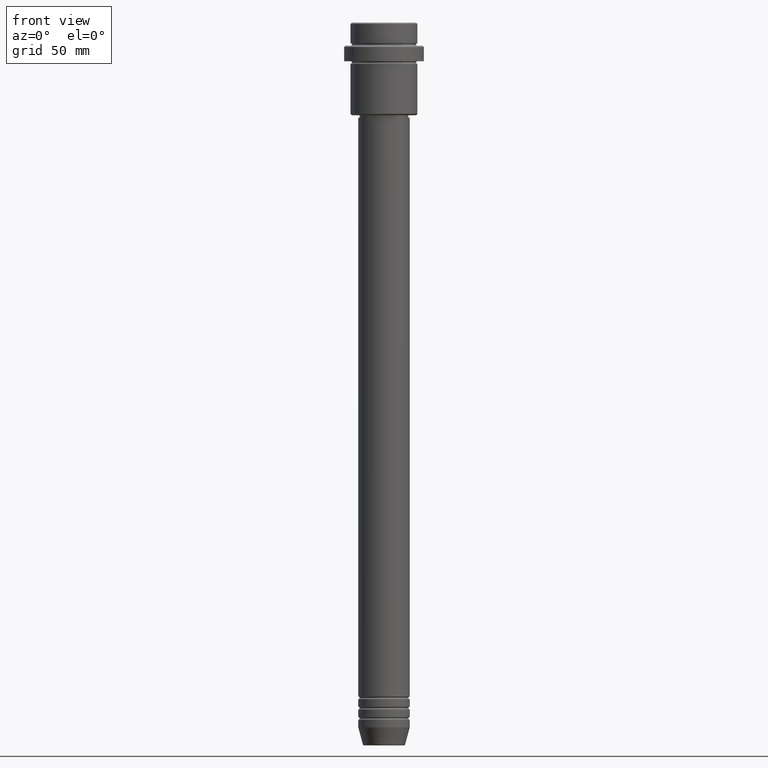
[diagram: clean part render]
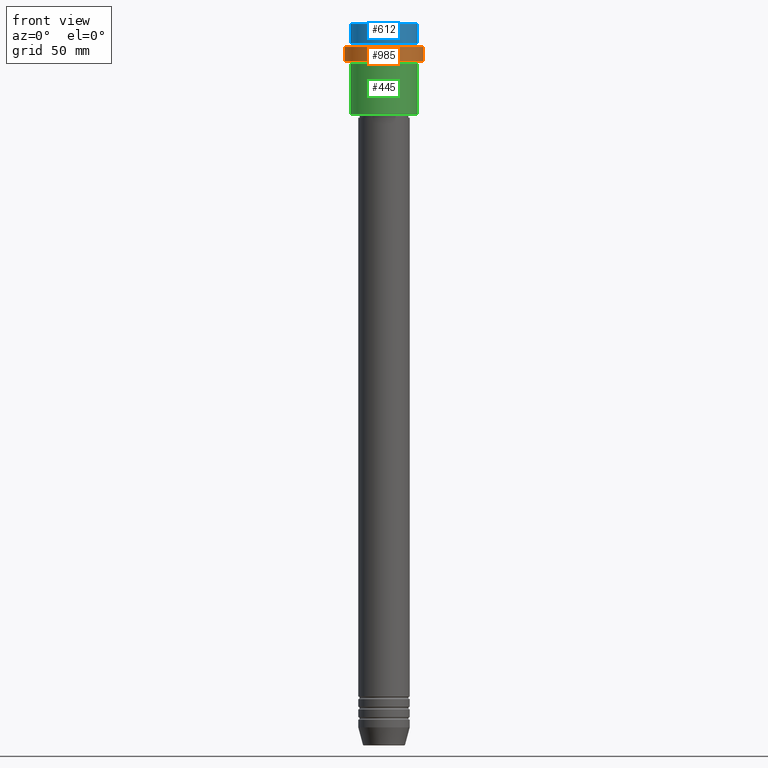
[diagram: same view with three faces highlighted in distinct colors, each labeled with its STEP entity id]
A machine part, front view with three faces highlighted in distinct colors.
Their STEP definitions:

[orange] entity #985 — the highlighted cylindrical surface (partial cylindrical patch) has radius 15.5 mm, axis along (-0, -0, 1).
#7 = CARTESIAN_POINT ( 'NONE',  ( -15.50000000000000000, 1.898202538678397557E-15, -15.00000000000000000 ) ) ;
#29 = LINE ( 'NONE', #1156, #322 ) ;
#55 = EDGE_CURVE ( 'NONE', #353, #807, #29, .T. ) ;
#61 = VECTOR ( 'NONE', #1362, 1000.000000000000000 ) ;
#104 = EDGE_CURVE ( 'NONE', #952, #807, #301, .T. ) ;
#123 = CARTESIAN_POINT ( 'NONE',  ( 0.000000000000000000, 0.000000000000000000, 0.000000000000000000 ) ) ;
#163 = DIRECTION ( 'NONE',  ( 1.000000000000000000, 0.000000000000000000, 0.000000000000000000 ) ) ;
#245 = CYLINDRICAL_SURFACE ( 'NONE', #376, 15.50000000000000000 ) ;
#298 = CARTESIAN_POINT ( 'NONE',  ( 0.000000000000000000, 0.000000000000000000, -15.00000000000000000 ) ) ;
#301 = CIRCLE ( 'NONE', #1121, 15.50000000000000000 ) ;
#302 = ORIENTED_EDGE ( 'NONE', *, *, #713, .T. ) ;
#305 = AXIS2_PLACEMENT_3D ( 'NONE', #298, #1042, #163 ) ;
#322 = VECTOR ( 'NONE', #596, 1000.000000000000000 ) ;
#353 = VERTEX_POINT ( 'NONE', #7 ) ;
#376 = AXIS2_PLACEMENT_3D ( 'NONE', #123, #1219, #494 ) ;
#469 = EDGE_CURVE ( 'NONE', #1340, #952, #588, .T. ) ;
#494 = DIRECTION ( 'NONE',  ( 1.000000000000000000, 0.000000000000000000, 0.000000000000000000 ) ) ;
#573 = CARTESIAN_POINT ( 'NONE',  ( -15.50000000000000000, 1.898202538678397557E-15, -9.500000000000012434 ) ) ;
#580 = CARTESIAN_POINT ( 'NONE',  ( 15.50000000000000000, 0.000000000000000000, 0.000000000000000000 ) ) ;
#588 = LINE ( 'NONE', #580, #61 ) ;
#596 = DIRECTION ( 'NONE',  ( -0.000000000000000000, -0.000000000000000000, 1.000000000000000000 ) ) ;
#600 = DIRECTION ( 'NONE',  ( 1.000000000000000000, 0.000000000000000000, 0.000000000000000000 ) ) ;
#688 = FACE_OUTER_BOUND ( 'NONE', #805, .T. ) ;
#713 = EDGE_CURVE ( 'NONE', #353, #1340, #1215, .T. ) ;
#795 = CARTESIAN_POINT ( 'NONE',  ( 15.50000000000000000, 0.000000000000000000, -9.500000000000012434 ) ) ;
#805 = EDGE_LOOP ( 'NONE', ( #1135, #302, #1228, #1237 ) ) ;
#807 = VERTEX_POINT ( 'NONE', #573 ) ;
#813 = DIRECTION ( 'NONE',  ( 0.000000000000000000, 0.000000000000000000, -1.000000000000000000 ) ) ;
#826 = CARTESIAN_POINT ( 'NONE',  ( 0.000000000000000000, 0.000000000000000000, -9.500000000000012434 ) ) ;
#952 = VERTEX_POINT ( 'NONE', #795 ) ;
#985 = ADVANCED_FACE ( 'NONE', ( #688 ), #245, .T. ) ;
#1042 = DIRECTION ( 'NONE',  ( -0.000000000000000000, -0.000000000000000000, 1.000000000000000000 ) ) ;
#1121 = AXIS2_PLACEMENT_3D ( 'NONE', #826, #813, #600 ) ;
#1135 = ORIENTED_EDGE ( 'NONE', *, *, #55, .F. ) ;
#1156 = CARTESIAN_POINT ( 'NONE',  ( -15.50000000000000000, 1.898202538678397557E-15, 0.000000000000000000 ) ) ;
#1215 = CIRCLE ( 'NONE', #305, 15.50000000000000000 ) ;
#1219 = DIRECTION ( 'NONE',  ( -0.000000000000000000, -0.000000000000000000, 1.000000000000000000 ) ) ;
#1228 = ORIENTED_EDGE ( 'NONE', *, *, #469, .T. ) ;
#1237 = ORIENTED_EDGE ( 'NONE', *, *, #104, .T. ) ;
#1291 = CARTESIAN_POINT ( 'NONE',  ( 15.50000000000000000, 0.000000000000000000, -15.00000000000000000 ) ) ;
#1340 = VERTEX_POINT ( 'NONE', #1291 ) ;
#1362 = DIRECTION ( 'NONE',  ( -0.000000000000000000, -0.000000000000000000, 1.000000000000000000 ) ) ;

[blue] entity #612 — the highlighted cylindrical surface (edge-blend (fillet) strip) has radius 13 mm, axis along (-0, -0, 1).
#118 = DIRECTION ( 'NONE',  ( 1.000000000000000000, 0.000000000000000000, 0.000000000000000000 ) ) ;
#135 = LINE ( 'NONE', #921, #1264 ) ;
#146 = CARTESIAN_POINT ( 'NONE',  ( -12.99999999999999822, 1.592040838891558898E-15, -0.5000000000000038858 ) ) ;
#182 = CARTESIAN_POINT ( 'NONE',  ( -12.99999999999999822, 1.592040838891558898E-15, -7.999999999999998224 ) ) ;
#199 = LINE ( 'NONE', #666, #876 ) ;
#261 = DIRECTION ( 'NONE',  ( -0.000000000000000000, -0.000000000000000000, 1.000000000000000000 ) ) ;
#422 = ORIENTED_EDGE ( 'NONE', *, *, #781, .F. ) ;
#444 = CARTESIAN_POINT ( 'NONE',  ( 12.99999999999999822, 0.000000000000000000, -7.999999999999998224 ) ) ;
#474 = DIRECTION ( 'NONE',  ( -0.000000000000000000, -0.000000000000000000, 1.000000000000000000 ) ) ;
#492 = EDGE_LOOP ( 'NONE', ( #422, #1165, #1152, #687 ) ) ;
#514 = VERTEX_POINT ( 'NONE', #146 ) ;
#530 = EDGE_CURVE ( 'NONE', #1098, #1255, #919, .T. ) ;
#612 = ADVANCED_FACE ( 'NONE', ( #1071 ), #966, .T. ) ;
#626 = CARTESIAN_POINT ( 'NONE',  ( 0.000000000000000000, 0.000000000000000000, 0.000000000000000000 ) ) ;
#642 = VERTEX_POINT ( 'NONE', #732 ) ;
#666 = CARTESIAN_POINT ( 'NONE',  ( -12.99999999999999822, 1.592040838891558898E-15, 0.000000000000000000 ) ) ;
#687 = ORIENTED_EDGE ( 'NONE', *, *, #887, .T. ) ;
#732 = CARTESIAN_POINT ( 'NONE',  ( 12.99999999999999822, 0.000000000000000000, -0.5000000000000038858 ) ) ;
#781 = EDGE_CURVE ( 'NONE', #1098, #514, #199, .T. ) ;
#801 = CARTESIAN_POINT ( 'NONE',  ( 0.000000000000000000, 0.000000000000000000, -7.999999999999998224 ) ) ;
#841 = DIRECTION ( 'NONE',  ( -0.000000000000000000, -0.000000000000000000, 1.000000000000000000 ) ) ;
#876 = VECTOR ( 'NONE', #1211, 1000.000000000000000 ) ;
#887 = EDGE_CURVE ( 'NONE', #642, #514, #1328, .T. ) ;
#919 = CIRCLE ( 'NONE', #1413, 12.99999999999999822 ) ;
#921 = CARTESIAN_POINT ( 'NONE',  ( 12.99999999999999822, 0.000000000000000000, 0.000000000000000000 ) ) ;
#961 = EDGE_CURVE ( 'NONE', #1255, #642, #135, .T. ) ;
#966 = CYLINDRICAL_SURFACE ( 'NONE', #1374, 12.99999999999999822 ) ;
#1071 = FACE_OUTER_BOUND ( 'NONE', #492, .T. ) ;
#1098 = VERTEX_POINT ( 'NONE', #182 ) ;
#1152 = ORIENTED_EDGE ( 'NONE', *, *, #961, .T. ) ;
#1165 = ORIENTED_EDGE ( 'NONE', *, *, #530, .T. ) ;
#1189 = DIRECTION ( 'NONE',  ( 0.000000000000000000, 0.000000000000000000, -1.000000000000000000 ) ) ;
#1211 = DIRECTION ( 'NONE',  ( -0.000000000000000000, -0.000000000000000000, 1.000000000000000000 ) ) ;
#1255 = VERTEX_POINT ( 'NONE', #444 ) ;
#1264 = VECTOR ( 'NONE', #474, 1000.000000000000000 ) ;
#1274 = DIRECTION ( 'NONE',  ( 1.000000000000000000, 0.000000000000000000, 0.000000000000000000 ) ) ;
#1286 = AXIS2_PLACEMENT_3D ( 'NONE', #1408, #1189, #1298 ) ;
#1298 = DIRECTION ( 'NONE',  ( 1.000000000000000000, 0.000000000000000000, 0.000000000000000000 ) ) ;
#1328 = CIRCLE ( 'NONE', #1286, 12.99999999999999822 ) ;
#1374 = AXIS2_PLACEMENT_3D ( 'NONE', #626, #841, #1274 ) ;
#1408 = CARTESIAN_POINT ( 'NONE',  ( 0.000000000000000000, 0.000000000000000000, -0.5000000000000038858 ) ) ;
#1413 = AXIS2_PLACEMENT_3D ( 'NONE', #801, #261, #118 ) ;

[green] entity #445 — the highlighted cylindrical surface (edge-blend (fillet) strip) has radius 13 mm, axis along (-0, -0, 1).
#42 = CARTESIAN_POINT ( 'NONE',  ( 0.000000000000000000, 0.000000000000000000, -35.50000000000004263 ) ) ;
#56 = VERTEX_POINT ( 'NONE', #820 ) ;
#76 = CARTESIAN_POINT ( 'NONE',  ( 13.00000000000000000, 0.000000000000000000, -16.00000000000000000 ) ) ;
#91 = EDGE_CURVE ( 'NONE', #56, #141, #340, .T. ) ;
#141 = VERTEX_POINT ( 'NONE', #1132 ) ;
#149 = ORIENTED_EDGE ( 'NONE', *, *, #814, .F. ) ;
#194 = ORIENTED_EDGE ( 'NONE', *, *, #251, .T. ) ;
#217 = DIRECTION ( 'NONE',  ( -0.000000000000000000, -0.000000000000000000, 1.000000000000000000 ) ) ;
#221 = VERTEX_POINT ( 'NONE', #299 ) ;
#251 = EDGE_CURVE ( 'NONE', #141, #1108, #844, .T. ) ;
#296 = ORIENTED_EDGE ( 'NONE', *, *, #91, .T. ) ;
#299 = CARTESIAN_POINT ( 'NONE',  ( -13.00000000000000000, 1.592040838891559095E-15, -16.00000000000000000 ) ) ;
#340 = CIRCLE ( 'NONE', #804, 13.00000000000000000 ) ;
#347 = CARTESIAN_POINT ( 'NONE',  ( -13.00000000000000000, 1.592040838891559095E-15, 0.000000000000000000 ) ) ;
#386 = EDGE_CURVE ( 'NONE', #56, #221, #1203, .T. ) ;
#445 = ADVANCED_FACE ( 'NONE', ( #873 ), #779, .T. ) ;
#455 = CARTESIAN_POINT ( 'NONE',  ( 0.000000000000000000, 0.000000000000000000, -16.00000000000000000 ) ) ;
#475 = AXIS2_PLACEMENT_3D ( 'NONE', #455, #217, #1001 ) ;
#773 = CARTESIAN_POINT ( 'NONE',  ( 0.000000000000000000, 0.000000000000000000, 0.000000000000000000 ) ) ;
#779 = CYLINDRICAL_SURFACE ( 'NONE', #1260, 13.00000000000000000 ) ;
#797 = DIRECTION ( 'NONE',  ( -1.000000000000000000, 0.000000000000000000, 0.000000000000000000 ) ) ;
#804 = AXIS2_PLACEMENT_3D ( 'NONE', #42, #1256, #797 ) ;
#809 = CIRCLE ( 'NONE', #475, 13.00000000000000000 ) ;
#814 = EDGE_CURVE ( 'NONE', #221, #1108, #809, .T. ) ;
#815 = EDGE_LOOP ( 'NONE', ( #1273, #296, #194, #149 ) ) ;
#820 = CARTESIAN_POINT ( 'NONE',  ( -13.00000000000000000, 1.592040838891559095E-15, -35.50000000000004263 ) ) ;
#844 = LINE ( 'NONE', #1068, #963 ) ;
#868 = DIRECTION ( 'NONE',  ( -0.000000000000000000, -0.000000000000000000, 1.000000000000000000 ) ) ;
#873 = FACE_OUTER_BOUND ( 'NONE', #815, .T. ) ;
#875 = VECTOR ( 'NONE', #868, 1000.000000000000000 ) ;
#963 = VECTOR ( 'NONE', #1380, 1000.000000000000000 ) ;
#989 = DIRECTION ( 'NONE',  ( -0.000000000000000000, -0.000000000000000000, 1.000000000000000000 ) ) ;
#997 = DIRECTION ( 'NONE',  ( 1.000000000000000000, 0.000000000000000000, 0.000000000000000000 ) ) ;
#1001 = DIRECTION ( 'NONE',  ( 1.000000000000000000, 0.000000000000000000, 0.000000000000000000 ) ) ;
#1068 = CARTESIAN_POINT ( 'NONE',  ( 13.00000000000000000, 0.000000000000000000, 0.000000000000000000 ) ) ;
#1108 = VERTEX_POINT ( 'NONE', #76 ) ;
#1132 = CARTESIAN_POINT ( 'NONE',  ( 13.00000000000000000, 0.000000000000000000, -35.50000000000004263 ) ) ;
#1203 = LINE ( 'NONE', #347, #875 ) ;
#1256 = DIRECTION ( 'NONE',  ( -0.000000000000000000, -0.000000000000000000, 1.000000000000000000 ) ) ;
#1260 = AXIS2_PLACEMENT_3D ( 'NONE', #773, #989, #997 ) ;
#1273 = ORIENTED_EDGE ( 'NONE', *, *, #386, .F. ) ;
#1380 = DIRECTION ( 'NONE',  ( -0.000000000000000000, -0.000000000000000000, 1.000000000000000000 ) ) ;